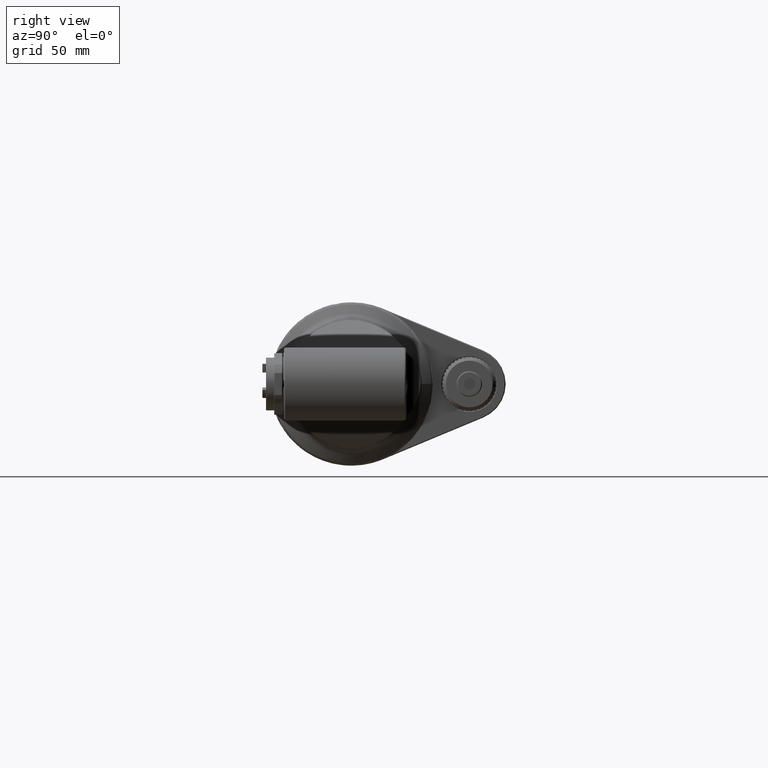
[diagram: clean part render]
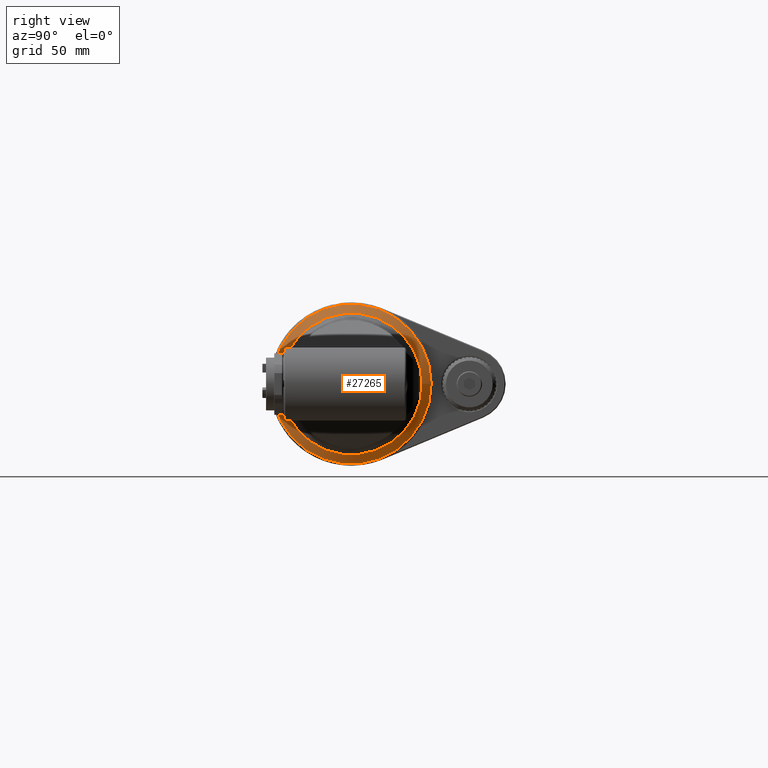
[diagram: same view with one face highlighted and labeled with its STEP entity id]
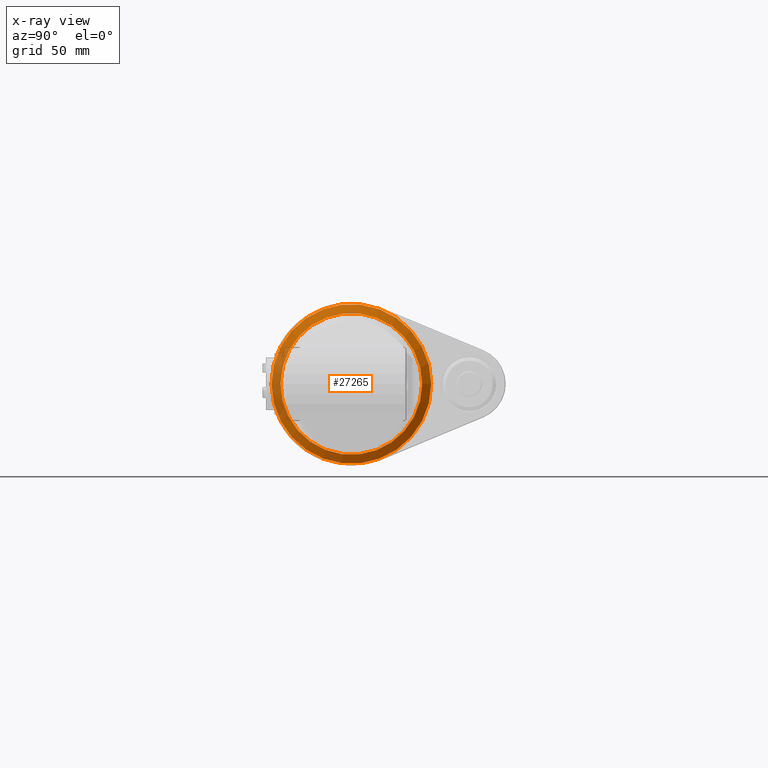
[diagram: x-ray of the same camera — body ghosted, the highlighted face saturated]
A machine part, right view. The second image highlights one B-rep face of the part: STEP entity #27265.
The next image is the same camera in x-ray: the body ghosted, the highlighted face saturated — about 15% of this face is hidden behind the body in this view.
In plain terms, the highlighted conical surface has half-angle 60 deg.
Its self-contained STEP definition (entity closure, byte-faithful):
#905=CONICAL_SURFACE('',#29403,41.5,1.0471975511966);
#1565=CIRCLE('',#29400,44.);
#1567=CIRCLE('',#29402,44.);
#1568=CIRCLE('',#29404,39.);
#1569=CIRCLE('',#29405,39.);
#2824=FACE_OUTER_BOUND('',#4452,.T.);
#4452=EDGE_LOOP('',(#20403,#20404,#20405,#20406,#20407,#20408));
#6314=LINE('',#49369,#8918);
#8918=VECTOR('',#33809,41.5);
#11717=VERTEX_POINT('',#49362);
#11718=VERTEX_POINT('',#49363);
#11719=VERTEX_POINT('',#49368);
#11720=VERTEX_POINT('',#49370);
#14888=EDGE_CURVE('',#11717,#11718,#1565,.T.);
#14890=EDGE_CURVE('',#11718,#11717,#1567,.T.);
#14891=EDGE_CURVE('',#11717,#11719,#6314,.T.);
#14892=EDGE_CURVE('',#11720,#11719,#1568,.T.);
#14893=EDGE_CURVE('',#11719,#11720,#1569,.T.);
#20403=ORIENTED_EDGE('',*,*,#14888,.F.);
#20404=ORIENTED_EDGE('',*,*,#14891,.T.);
#20405=ORIENTED_EDGE('',*,*,#14892,.F.);
#20406=ORIENTED_EDGE('',*,*,#14893,.F.);
#20407=ORIENTED_EDGE('',*,*,#14891,.F.);
#20408=ORIENTED_EDGE('',*,*,#14890,.F.);
#27265=ADVANCED_FACE('',(#2824),#905,.T.);
#29400=AXIS2_PLACEMENT_3D('',#49364,#33801,#33802);
#29402=AXIS2_PLACEMENT_3D('',#49366,#33805,#33806);
#29403=AXIS2_PLACEMENT_3D('',#49367,#33807,#33808);
#29404=AXIS2_PLACEMENT_3D('',#49371,#33810,#33811);
#29405=AXIS2_PLACEMENT_3D('',#49372,#33812,#33813);
#33801=DIRECTION('center_axis',(0.,-1.,0.));
#33802=DIRECTION('ref_axis',(-1.,0.,0.));
#33805=DIRECTION('center_axis',(0.,-1.,0.));
#33806=DIRECTION('ref_axis',(-1.,0.,0.));
#33807=DIRECTION('center_axis',(0.,-1.,0.));
#33808=DIRECTION('ref_axis',(-1.,0.,0.));
#33809=DIRECTION('',(-0.86602540378444,0.499999999999998,-1.06057523872491E-16));
#33810=DIRECTION('center_axis',(0.,1.,0.));
#33811=DIRECTION('ref_axis',(-1.,0.,0.));
#33812=DIRECTION('center_axis',(0.,1.,0.));
#33813=DIRECTION('ref_axis',(-1.,0.,0.));
#49362=CARTESIAN_POINT('',(44.,35.57735026919,0.));
#49363=CARTESIAN_POINT('',(43.9983912318799,35.57735026919,-0.376256569951238));
#49364=CARTESIAN_POINT('Origin',(0.,35.57735026919,0.));
#49366=CARTESIAN_POINT('Origin',(0.,35.57735026919,0.));
#49367=CARTESIAN_POINT('Origin',(0.,37.02072594216,0.));
#49368=CARTESIAN_POINT('',(38.9999999999974,38.4641016151355,4.77612251667436E-15));
#49369=CARTESIAN_POINT('',(41.5,37.02072594216,5.08228421646152E-15));
#49370=CARTESIAN_POINT('',(-38.9978551420063,38.46410161514,-0.409016287080169));
#49371=CARTESIAN_POINT('Origin',(0.,38.46410161514,0.));
#49372=CARTESIAN_POINT('Origin',(0.,38.46410161514,0.));